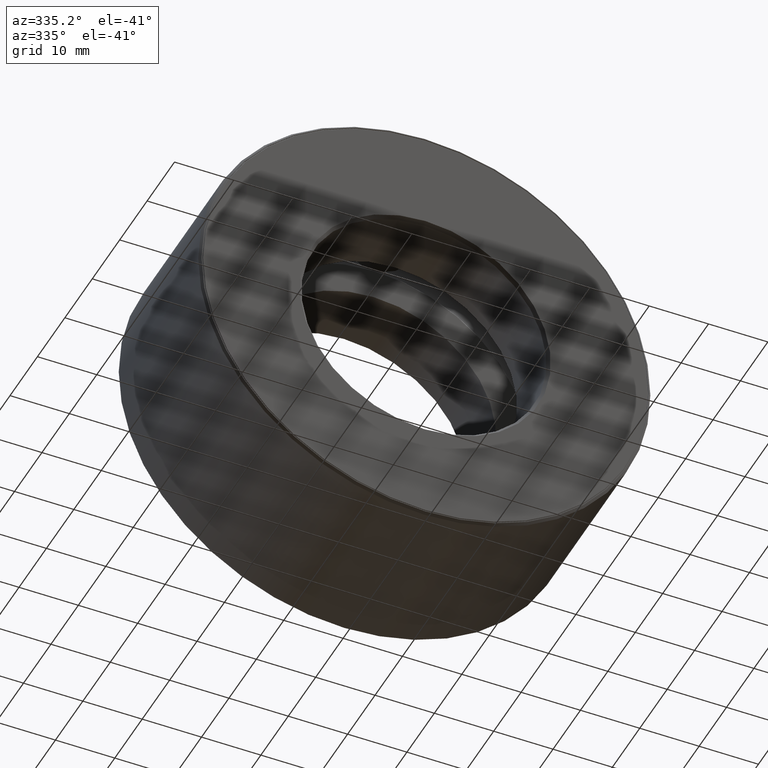
[diagram: clean part render]
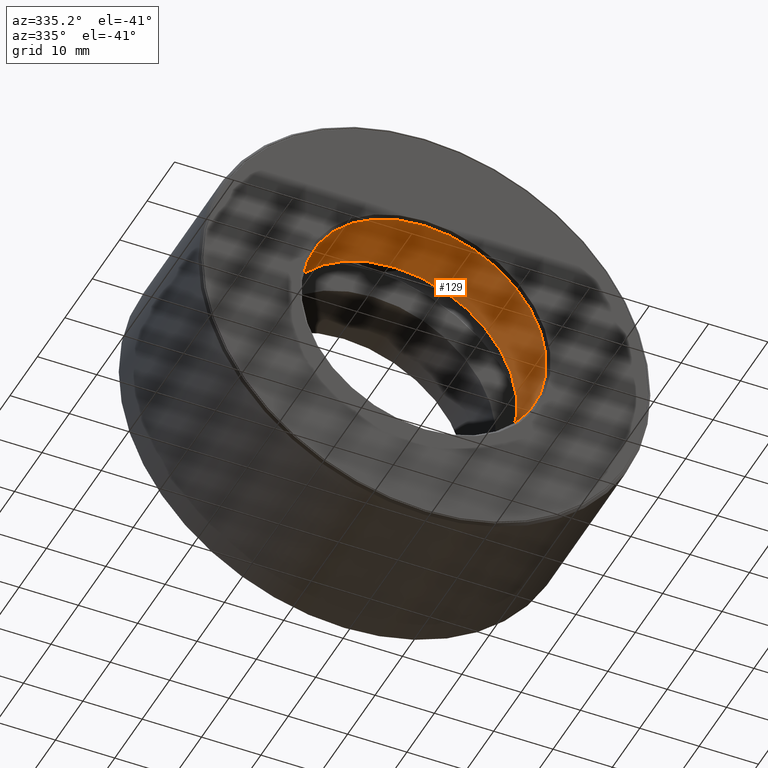
[diagram: same view with one face highlighted and labeled with its STEP entity id]
A machine part, auxiliary view. The second image highlights one B-rep face of the part: STEP entity #129.
In plain terms, the highlighted cylindrical surface (bore or boss wall) has radius 20.6375 mm, axis along (-0, 1, -0).
Its self-contained STEP definition (entity closure, byte-faithful):
#70 = DIRECTION ( 'NONE',  ( 0.0000000000000000000, 0.0000000000000000000, 1.000000000000000000 ) ) ;
#89 = CARTESIAN_POINT ( 'NONE',  ( 0.0000000000000000000, 0.4437500000000002000, 0.0000000000000000000 ) ) ;
#97 = ORIENTED_EDGE ( 'NONE', *, *, #243, .T. ) ;
#129 = ADVANCED_FACE ( 'NONE', ( #554, #143 ), #288, .F. ) ;
#143 = FACE_OUTER_BOUND ( 'NONE', #202, .T. ) ;
#202 = EDGE_LOOP ( 'NONE', ( #97 ) ) ;
#205 = VERTEX_POINT ( 'NONE', #400 ) ;
#226 = CARTESIAN_POINT ( 'NONE',  ( 0.0000000000000000000, 0.02000000000000046900, 0.0000000000000000000 ) ) ;
#243 = EDGE_CURVE ( 'NONE', #205, #205, #459, .T. ) ;
#249 = ORIENTED_EDGE ( 'NONE', *, *, #431, .F. ) ;
#280 = DIRECTION ( 'NONE',  ( -0.0000000000000000000, 1.000000000000000000, -0.0000000000000000000 ) ) ;
#282 = AXIS2_PLACEMENT_3D ( 'NONE', #89, #374, #463 ) ;
#288 = CYLINDRICAL_SURFACE ( 'NONE', #306, 0.8125000000000001100 ) ;
#300 = DIRECTION ( 'NONE',  ( -0.0000000000000000000, 1.000000000000000000, -0.0000000000000000000 ) ) ;
#306 = AXIS2_PLACEMENT_3D ( 'NONE', #535, #300, #70 ) ;
#374 = DIRECTION ( 'NONE',  ( -0.0000000000000000000, 1.000000000000000000, -0.0000000000000000000 ) ) ;
#400 = CARTESIAN_POINT ( 'NONE',  ( 0.0000000000000000000, 0.4437500000000002000, 0.8125000000000001100 ) ) ;
#414 = AXIS2_PLACEMENT_3D ( 'NONE', #226, #280, #603 ) ;
#431 = EDGE_CURVE ( 'NONE', #569, #569, #537, .T. ) ;
#454 = CARTESIAN_POINT ( 'NONE',  ( 0.0000000000000000000, 0.02000000000000046900, 0.8125000000000000000 ) ) ;
#459 = CIRCLE ( 'NONE', #282, 0.8125000000000001100 ) ;
#463 = DIRECTION ( 'NONE',  ( 0.0000000000000000000, 0.0000000000000000000, 1.000000000000000000 ) ) ;
#535 = CARTESIAN_POINT ( 'NONE',  ( 0.0000000000000000000, 0.0000000000000000000, 0.0000000000000000000 ) ) ;
#537 = CIRCLE ( 'NONE', #414, 0.8125000000000000000 ) ;
#554 = FACE_OUTER_BOUND ( 'NONE', #584, .T. ) ;
#569 = VERTEX_POINT ( 'NONE', #454 ) ;
#584 = EDGE_LOOP ( 'NONE', ( #249 ) ) ;
#603 = DIRECTION ( 'NONE',  ( 0.0000000000000000000, 0.0000000000000000000, 1.000000000000000000 ) ) ;